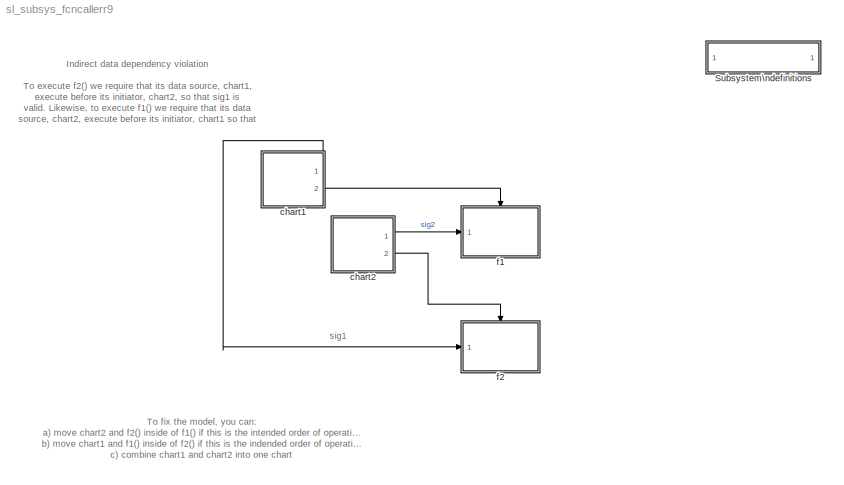
MODEL sl_subsys_fcncallerr9
KIND model
BLOCK [SubSystem]  Subsystem\ndefinitions
  MaskDisplay = disp('Subsystem\\ndefinitions')\n\n
  MaskIconFrame = on
  MaskIconOpaque = on
  MaskIconRotate = none
  MaskIconUnits = autoscale
  MinAlgLoopOccurrences = off
  OpenFcn = helpview([matlabroot,'/toolbox/simulink/simdemos/sl_subsys_definitions.html']);
  Ports = []
  PropExecContextAcrossSSBoundary = on
  RTWSystemCode = Auto
  TreatAsAtomicUnit = off
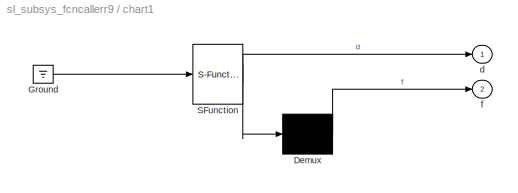
BLOCK [SubSystem] chart1
  MaskDescription = Stateflow diagram
  MaskDisplay = plot(sf('Private','sfblk','xIcon'),sf('Private','sfblk','yIcon'));text(0.5,0,sf('Private', 'sfblk', 'tIcon'),'HorizontalAl','Center','VerticalAl','Bottom');
  MaskIconFrame = off
  MaskIconOpaque = off
  MaskIconRotate = none
  MaskIconUnits = autoscale
  MaskSelfModifiable = on
  MaskType = Stateflow
  MinAlgLoopOccurrences = off
  Ports = [0, 2]
  PropExecContextAcrossSSBoundary = on
  RTWSystemCode = Auto
  TreatAsAtomicUnit = off
BLOCK [Demux] chart1/ Demux 
  Outputs = 1
  Ports = [1, 1]
BLOCK [Ground] chart1/ Ground 
BLOCK [S-Function] chart1/ SFunction 
  FunctionName = sf_sfun
  PortCounts = [1 2]
  Ports = [1, 2]
  Tag = Stateflow S-Function sl_subsys_fcncallerr9 2
BLOCK [Outport] chart1/d
  IconDisplay = Port number
BLOCK [Outport] chart1/f
  IconDisplay = Port number
  Port = 2
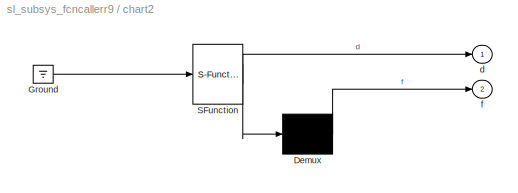
BLOCK [SubSystem] chart2
  MaskDescription = Stateflow diagram
  MaskDisplay = plot(sf('Private','sfblk','xIcon'),sf('Private','sfblk','yIcon'));text(0.5,0,sf('Private', 'sfblk', 'tIcon'),'HorizontalAl','Center','VerticalAl','Bottom');
  MaskIconFrame = off
  MaskIconOpaque = off
  MaskIconRotate = none
  MaskIconUnits = autoscale
  MaskSelfModifiable = on
  MaskType = Stateflow
  MinAlgLoopOccurrences = off
  Ports = [0, 2]
  PropExecContextAcrossSSBoundary = on
  RTWSystemCode = Auto
  TreatAsAtomicUnit = off
BLOCK [Demux] chart2/ Demux 
  Outputs = 1
  Ports = [1, 1]
BLOCK [Ground] chart2/ Ground 
BLOCK [S-Function] chart2/ SFunction 
  FunctionName = sf_sfun
  PortCounts = [1 2]
  Ports = [1, 2]
  Tag = Stateflow S-Function sl_subsys_fcncallerr9 1
BLOCK [Outport] chart2/d
  IconDisplay = Port number
BLOCK [Outport] chart2/f
  IconDisplay = Port number
  Port = 2
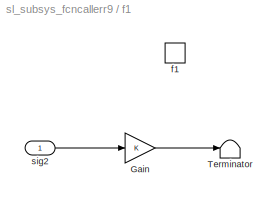
BLOCK [SubSystem] f1
  MinAlgLoopOccurrences = off
  Ports = [1, 0, 0, 1]
  PropExecContextAcrossSSBoundary = on
  RTWSystemCode = Auto
  TreatAsAtomicUnit = on
BLOCK [Gain] f1/Gain
BLOCK [Terminator] f1/Terminator
BLOCK [TriggerPort] f1/f1
  Ports = []
  TriggerType = function-call
BLOCK [Inport] f1/sig2
  IconDisplay = Port number
  LatchInput = off
  Port = 1
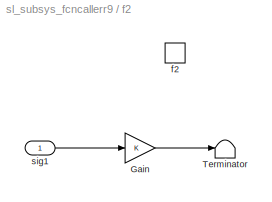
BLOCK [SubSystem] f2
  MinAlgLoopOccurrences = off
  Ports = [1, 0, 0, 1]
  PropExecContextAcrossSSBoundary = on
  RTWSystemCode = Auto
  TreatAsAtomicUnit = on
BLOCK [Gain] f2/Gain
BLOCK [Terminator] f2/Terminator
BLOCK [TriggerPort] f2/f2
  Ports = []
  TriggerType = function-call
BLOCK [Inport] f2/sig1
  IconDisplay = Port number
  LatchInput = off
  Port = 1
ANNOTATION (root): Indirect data dependency violation\n\nTo execute f2() we require that its data source, chart1,\nexecute before its initiator, chart2, so that sig1 is\nvalid. Likewise, to execute f1() we require that its data\nsource, chart2, execute before its initiator, chart1 so that\nsig2 is valid. Hence the data dependency violation.
ANNOTATION (root): To fix the model, you can:\na) move chart2 and f2() inside of f1() if this is the intended order of operations,\nb) move chart1 and f1() inside of f2() if this is the indended order of operations,\nc) combine chart1 and chart2 into one chart
ANNOTATION (root): sig1
LINE chart1/ Demux :1 -> chart1/f:1
LINE chart1/ Ground :1 -> chart1/ SFunction :1
LINE chart1/ SFunction :1 -> chart1/ Demux :1
LINE chart1/ SFunction :2 -> chart1/d:1
LINE chart1:1 -> f2:1
LINE chart1:2 -> f1:trigger
LINE chart2/ Demux :1 -> chart2/f:1
LINE chart2/ Ground :1 -> chart2/ SFunction :1
LINE chart2/ SFunction :1 -> chart2/ Demux :1
LINE chart2/ SFunction :2 -> chart2/d:1
LINE chart2:1 -> f1:1
LINE chart2:2 -> f2:trigger
LINE f1/Gain:1 -> f1/Terminator:1
LINE f1/sig2:1 -> f1/Gain:1
LINE f2/Gain:1 -> f2/Terminator:1
LINE f2/sig1:1 -> f2/Gain:1
CHART chart2 states=2 transitions=3
  STATE_LABEL 'one/\\nentry: f; d=1;'
  STATE_LABEL 'two/\\nentry: f; d=2;'
CHART chart1 states=2 transitions=3
  STATE_LABEL 'one/\\nentry: f; d=1;'
  STATE_LABEL 'two/\\nentry: f; d=2;'
